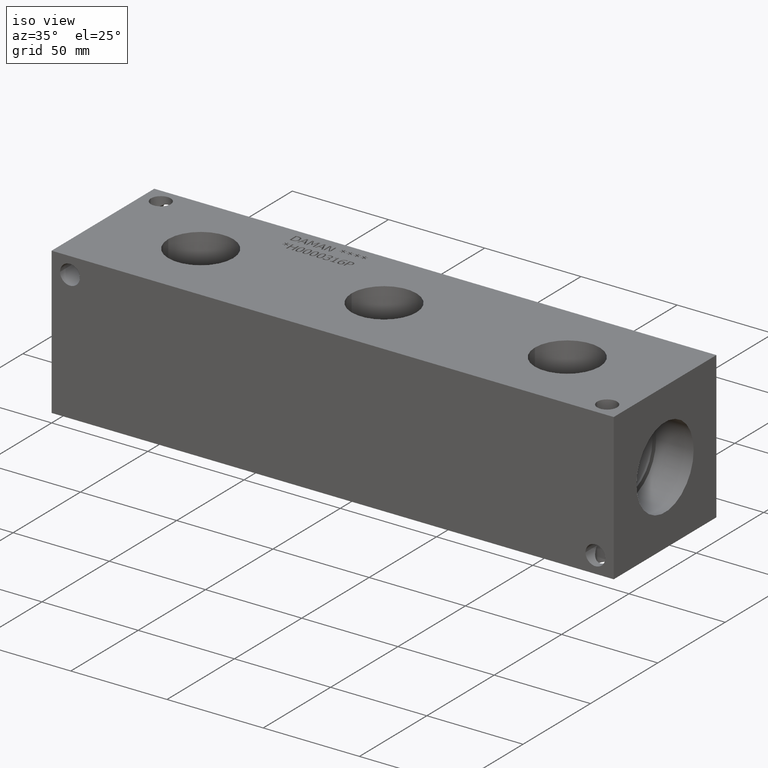
[diagram: clean part render]
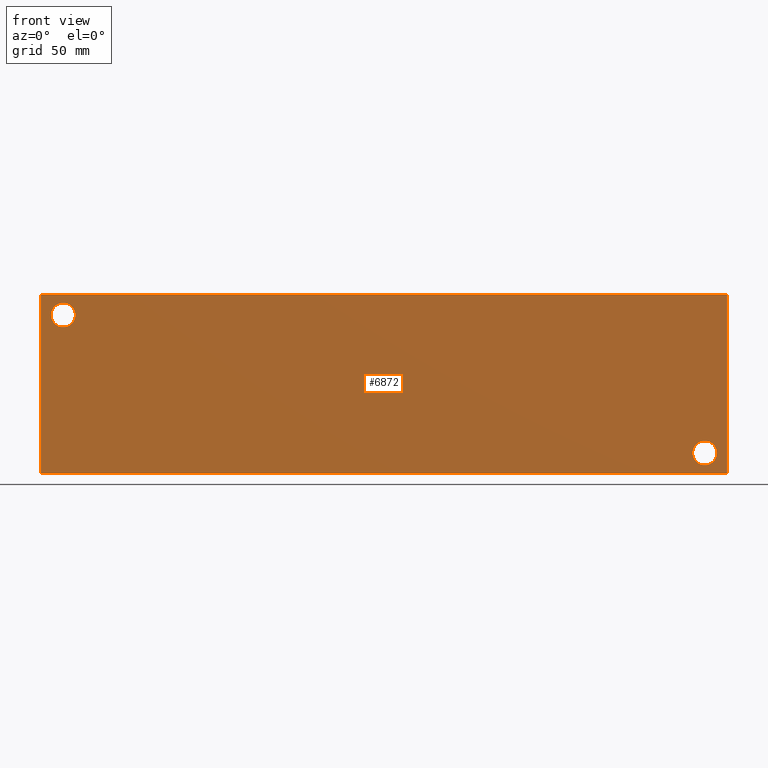
[diagram: tour spotlight — one face highlighted and labeled with its STEP entity id]
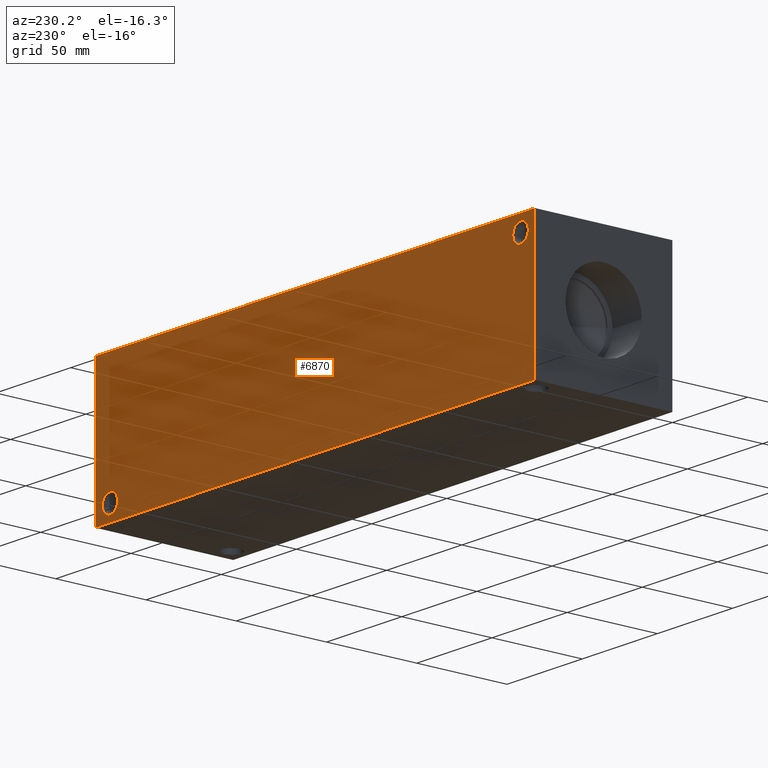
[diagram: tour spotlight — one face highlighted and labeled with its STEP entity id]
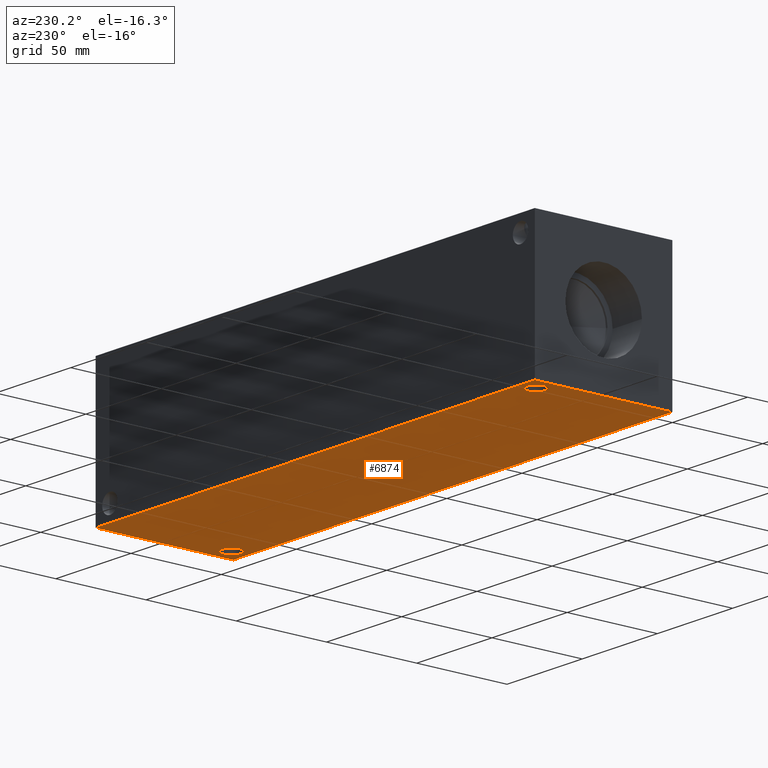
[diagram: tour spotlight — one face highlighted and labeled with its STEP entity id]
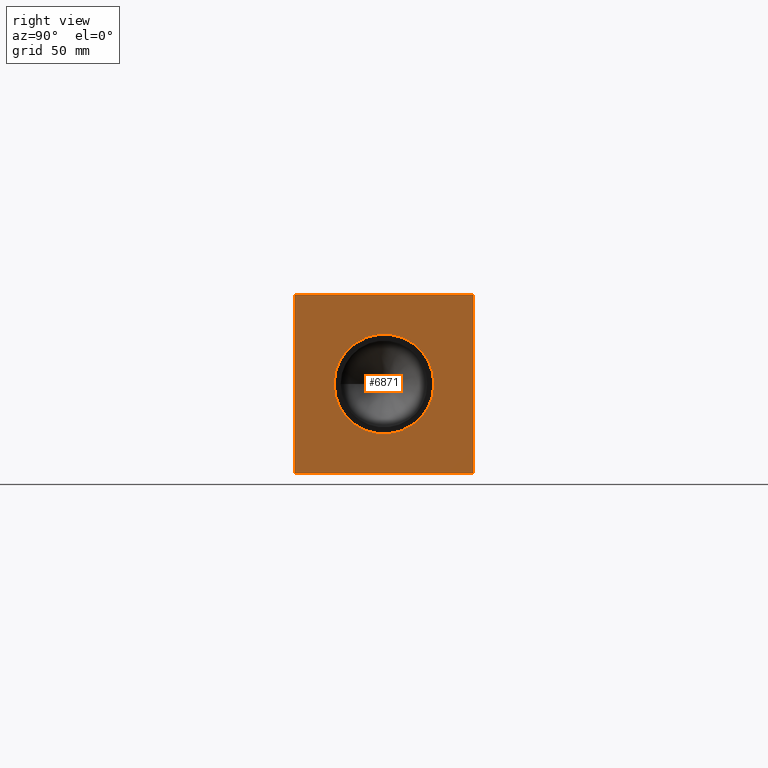
[diagram: tour spotlight — one face highlighted and labeled with its STEP entity id]
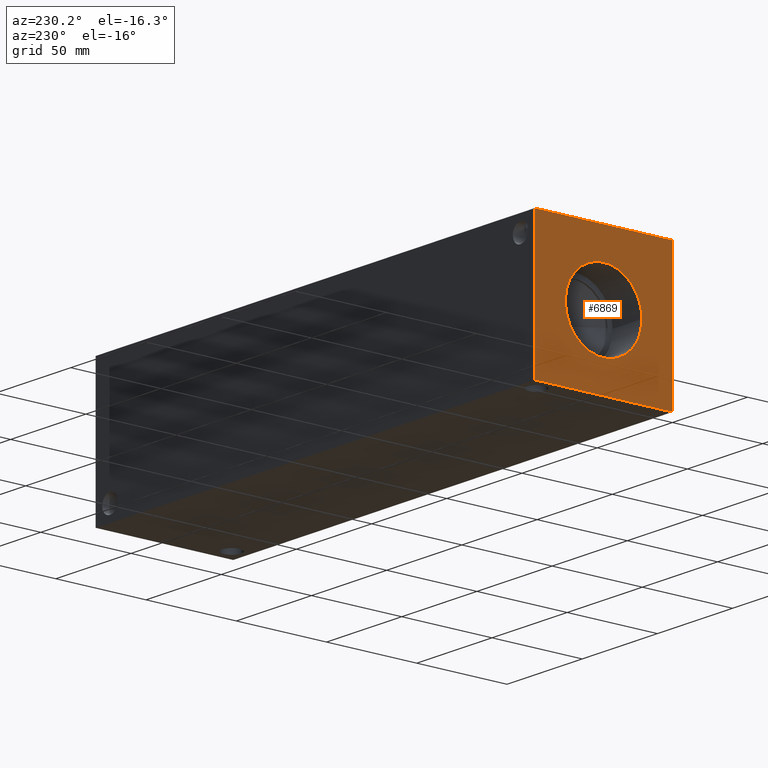
[diagram: tour spotlight — one face highlighted and labeled with its STEP entity id]
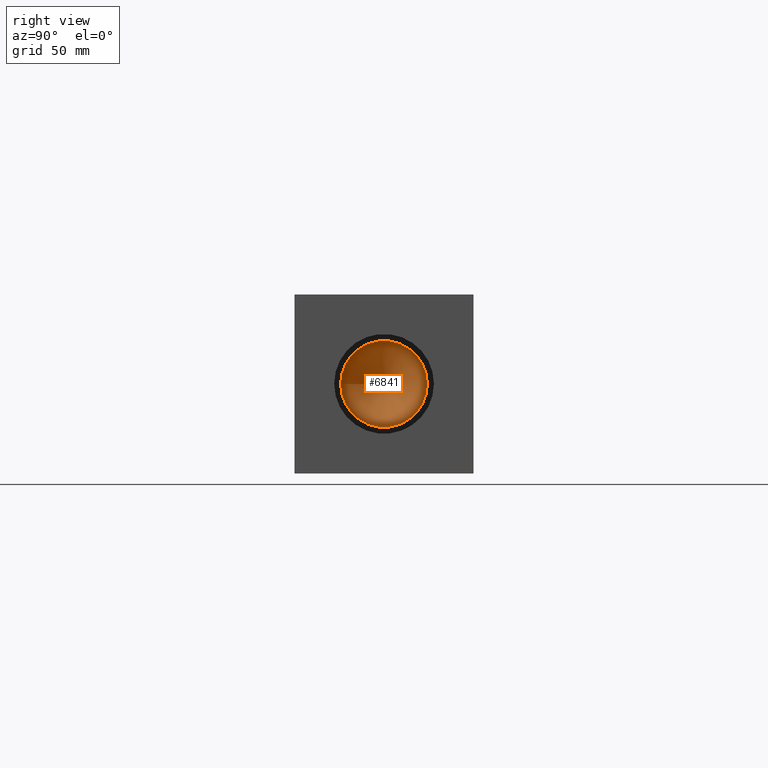
[diagram: tour spotlight — one face highlighted and labeled with its STEP entity id]
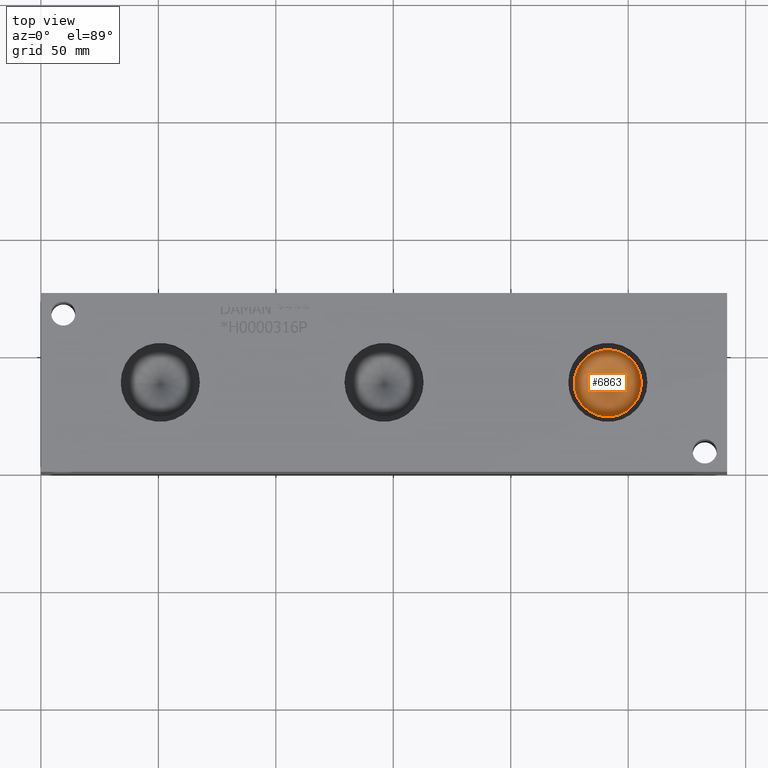
[diagram: tour spotlight — one face highlighted and labeled with its STEP entity id]
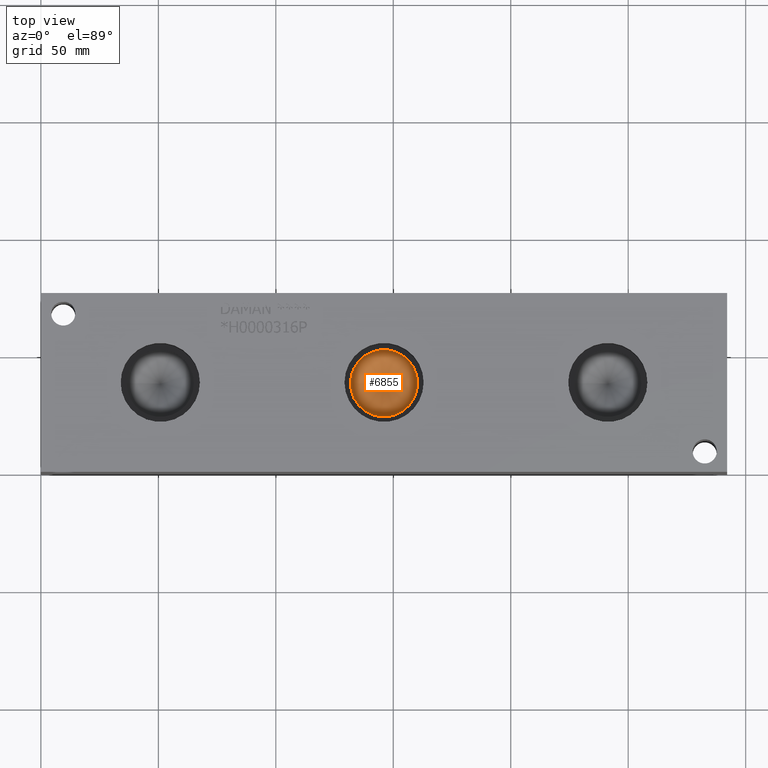
[diagram: tour spotlight — one face highlighted and labeled with its STEP entity id]
A machine part: a face-by-face anatomy tour. The part has 346 B-rep faces; the first image is the clean iso view, then the 8 largest visible faces are spotlighted one at a time (largest first), each with its STEP entity span.

Face 1 — front view, entity #6872. In plain terms, the highlighted planar face has unit normal (0, -1, 0).
Definition (entity closure, byte-faithful):
#69=CIRCLE('',#7131,5.1562);
#70=CIRCLE('',#7132,5.1562);
#72=CIRCLE('',#7141,5.1562);
#73=CIRCLE('',#7142,5.1562);
#443=FACE_BOUND('',#1179,.T.);
#444=FACE_BOUND('',#1180,.T.);
#790=FACE_OUTER_BOUND('',#1178,.T.);
#1178=EDGE_LOOP('',(#5984,#5985,#5986,#5987));
#1179=EDGE_LOOP('',(#5988,#5989));
#1180=EDGE_LOOP('',(#5990,#5991));
#1562=LINE('',#9369,#2243);
#1859=LINE('',#11712,#2540);
#1864=LINE('',#11721,#2545);
#1865=LINE('',#11723,#2546);
#2243=VECTOR('',#7832,10.);
#2540=VECTOR('',#8449,10.);
#2545=VECTOR('',#8458,10.);
#2546=VECTOR('',#8461,10.);
#2809=VERTEX_POINT('',#9367);
#2810=VERTEX_POINT('',#9368);
#3145=VERTEX_POINT('',#11611);
#3146=VERTEX_POINT('',#11612);
#3150=VERTEX_POINT('',#11629);
#3151=VERTEX_POINT('',#11630);
#3176=VERTEX_POINT('',#11710);
#3178=VERTEX_POINT('',#11719);
#3572=EDGE_CURVE('',#2809,#2810,#1562,.T.);
#4065=EDGE_CURVE('',#3145,#3146,#69,.T.);
#4066=EDGE_CURVE('',#3146,#3145,#70,.T.);
#4075=EDGE_CURVE('',#3150,#3151,#72,.T.);
#4076=EDGE_CURVE('',#3151,#3150,#73,.T.);
#4114=EDGE_CURVE('',#3176,#2809,#1859,.T.);
#4119=EDGE_CURVE('',#3178,#2810,#1864,.T.);
#4120=EDGE_CURVE('',#3176,#3178,#1865,.T.);
#5984=ORIENTED_EDGE('',*,*,#4120,.T.);
#5985=ORIENTED_EDGE('',*,*,#4119,.T.);
#5986=ORIENTED_EDGE('',*,*,#3572,.F.);
#5987=ORIENTED_EDGE('',*,*,#4114,.F.);
#5988=ORIENTED_EDGE('',*,*,#4065,.T.);
#5989=ORIENTED_EDGE('',*,*,#4066,.T.);
#5990=ORIENTED_EDGE('',*,*,#4075,.T.);
#5991=ORIENTED_EDGE('',*,*,#4076,.T.);
#6222=PLANE('',#7184);
#6872=ADVANCED_FACE('',(#790,#443,#444),#6222,.T.);
#7131=AXIS2_PLACEMENT_3D('',#11613,#8329,#8330);
#7132=AXIS2_PLACEMENT_3D('',#11614,#8331,#8332);
#7141=AXIS2_PLACEMENT_3D('',#11631,#8352,#8353);
#7142=AXIS2_PLACEMENT_3D('',#11632,#8354,#8355);
#7184=AXIS2_PLACEMENT_3D('',#11722,#8459,#8460);
#7832=DIRECTION('',(1.,0.,0.));
#8329=DIRECTION('center_axis',(0.,1.,0.));
#8330=DIRECTION('ref_axis',(1.,0.,0.));
#8331=DIRECTION('center_axis',(0.,1.,0.));
#8332=DIRECTION('ref_axis',(1.,0.,0.));
#8352=DIRECTION('center_axis',(0.,1.,0.));
#8353=DIRECTION('ref_axis',(1.,0.,0.));
#8354=DIRECTION('center_axis',(0.,1.,0.));
#8355=DIRECTION('ref_axis',(1.,0.,0.));
#8449=DIRECTION('',(0.,0.,1.));
#8458=DIRECTION('',(0.,0.,1.));
#8459=DIRECTION('center_axis',(0.,-1.,0.));
#8460=DIRECTION('ref_axis',(1.,0.,0.));
#8461=DIRECTION('',(1.,0.,0.));
#9367=CARTESIAN_POINT('',(0.,0.,76.2));
#9368=CARTESIAN_POINT('',(292.1,0.,76.2));
#9369=CARTESIAN_POINT('',(0.,0.,76.2));
#11611=CARTESIAN_POINT('',(287.7312,0.,8.7376));
#11612=CARTESIAN_POINT('',(277.4188,0.,8.7376));
#11613=CARTESIAN_POINT('Origin',(282.575,0.,8.7376));
#11614=CARTESIAN_POINT('Origin',(282.575,0.,8.7376));
#11629=CARTESIAN_POINT('',(14.6812,0.,67.4624));
#11630=CARTESIAN_POINT('',(4.3688,0.,67.4624));
#11631=CARTESIAN_POINT('Origin',(9.525,0.,67.4624));
#11632=CARTESIAN_POINT('Origin',(9.525,0.,67.4624));
#11710=CARTESIAN_POINT('',(0.,0.,0.));
#11712=CARTESIAN_POINT('',(0.,0.,0.));
#11719=CARTESIAN_POINT('',(292.1,0.,0.));
#11721=CARTESIAN_POINT('',(292.1,0.,0.));
#11722=CARTESIAN_POINT('Origin',(0.,0.,0.));
#11723=CARTESIAN_POINT('',(0.,0.,0.));

Face 2 — auxiliary view, entity #6870. In plain terms, the highlighted planar face has unit normal (0, 1, 0).
Definition (entity closure, byte-faithful):
#71=CIRCLE('',#7138,5.1562);
#74=CIRCLE('',#7148,5.1562);
#440=FACE_BOUND('',#1174,.T.);
#441=FACE_BOUND('',#1175,.T.);
#788=FACE_OUTER_BOUND('',#1173,.T.);
#1173=EDGE_LOOP('',(#5972,#5973,#5974,#5975));
#1174=EDGE_LOOP('',(#5976));
#1175=EDGE_LOOP('',(#5977));
#1564=LINE('',#9373,#2245);
#1860=LINE('',#11713,#2541);
#1861=LINE('',#11716,#2542);
#1862=LINE('',#11717,#2543);
#2245=VECTOR('',#7834,10.);
#2541=VECTOR('',#8450,10.);
#2542=VECTOR('',#8453,10.);
#2543=VECTOR('',#8454,10.);
#2811=VERTEX_POINT('',#9370);
#2812=VERTEX_POINT('',#9372);
#3149=VERTEX_POINT('',#11623);
#3154=VERTEX_POINT('',#11641);
#3175=VERTEX_POINT('',#11709);
#3177=VERTEX_POINT('',#11715);
#3574=EDGE_CURVE('',#2811,#2812,#1564,.T.);
#4073=EDGE_CURVE('',#3149,#3149,#71,.T.);
#4083=EDGE_CURVE('',#3154,#3154,#74,.T.);
#4115=EDGE_CURVE('',#3175,#2812,#1860,.T.);
#4116=EDGE_CURVE('',#3177,#3175,#1861,.T.);
#4117=EDGE_CURVE('',#3177,#2811,#1862,.T.);
#5972=ORIENTED_EDGE('',*,*,#4116,.T.);
#5973=ORIENTED_EDGE('',*,*,#4115,.T.);
#5974=ORIENTED_EDGE('',*,*,#3574,.F.);
#5975=ORIENTED_EDGE('',*,*,#4117,.F.);
#5976=ORIENTED_EDGE('',*,*,#4073,.T.);
#5977=ORIENTED_EDGE('',*,*,#4083,.T.);
#6220=PLANE('',#7182);
#6870=ADVANCED_FACE('',(#788,#440,#441),#6220,.T.);
#7138=AXIS2_PLACEMENT_3D('',#11625,#8345,#8346);
#7148=AXIS2_PLACEMENT_3D('',#11643,#8368,#8369);
#7182=AXIS2_PLACEMENT_3D('',#11714,#8451,#8452);
#7834=DIRECTION('',(-1.,0.,0.));
#8345=DIRECTION('center_axis',(0.,-1.,0.));
#8346=DIRECTION('ref_axis',(1.,0.,0.));
#8368=DIRECTION('center_axis',(0.,-1.,0.));
#8369=DIRECTION('ref_axis',(1.,0.,0.));
#8450=DIRECTION('',(0.,0.,1.));
#8451=DIRECTION('center_axis',(0.,1.,0.));
#8452=DIRECTION('ref_axis',(-1.,0.,0.));
#8453=DIRECTION('',(-1.,0.,0.));
#8454=DIRECTION('',(0.,0.,1.));
#9370=CARTESIAN_POINT('',(292.1,76.2,76.2));
#9372=CARTESIAN_POINT('',(0.,76.2,76.2));
#9373=CARTESIAN_POINT('',(292.1,76.2,76.2));
#11623=CARTESIAN_POINT('',(277.4188,76.2,8.7376));
#11625=CARTESIAN_POINT('Origin',(282.575,76.2,8.7376));
#11641=CARTESIAN_POINT('',(4.3688,76.2,67.4624));
#11643=CARTESIAN_POINT('Origin',(9.525,76.2,67.4624));
#11709=CARTESIAN_POINT('',(0.,76.2,0.));
#11713=CARTESIAN_POINT('',(0.,76.2,0.));
#11714=CARTESIAN_POINT('Origin',(292.1,76.2,0.));
#11715=CARTESIAN_POINT('',(292.1,76.2,0.));
#11716=CARTESIAN_POINT('',(292.1,76.2,0.));
#11717=CARTESIAN_POINT('',(292.1,76.2,0.));

Face 3 — auxiliary view, entity #6874. In plain terms, the highlighted planar face has unit normal (0, 0, 1).
Definition (entity closure, byte-faithful):
#90=CIRCLE('',#7178,5.1562);
#91=CIRCLE('',#7180,5.1562);
#445=FACE_BOUND('',#1183,.T.);
#446=FACE_BOUND('',#1184,.T.);
#792=FACE_OUTER_BOUND('',#1182,.T.);
#1182=EDGE_LOOP('',(#5999,#6000,#6001,#6002));
#1183=EDGE_LOOP('',(#6003));
#1184=EDGE_LOOP('',(#6004));
#1858=LINE('',#11711,#2539);
#1861=LINE('',#11716,#2542);
#1863=LINE('',#11720,#2544);
#1865=LINE('',#11723,#2546);
#2539=VECTOR('',#8448,10.);
#2542=VECTOR('',#8453,10.);
#2544=VECTOR('',#8457,10.);
#2546=VECTOR('',#8461,10.);
#3173=VERTEX_POINT('',#11701);
#3174=VERTEX_POINT('',#11705);
#3175=VERTEX_POINT('',#11709);
#3176=VERTEX_POINT('',#11710);
#3177=VERTEX_POINT('',#11715);
#3178=VERTEX_POINT('',#11719);
#4110=EDGE_CURVE('',#3173,#3173,#90,.T.);
#4112=EDGE_CURVE('',#3174,#3174,#91,.T.);
#4113=EDGE_CURVE('',#3175,#3176,#1858,.T.);
#4116=EDGE_CURVE('',#3177,#3175,#1861,.T.);
#4118=EDGE_CURVE('',#3178,#3177,#1863,.T.);
#4120=EDGE_CURVE('',#3176,#3178,#1865,.T.);
#5999=ORIENTED_EDGE('',*,*,#4120,.F.);
#6000=ORIENTED_EDGE('',*,*,#4113,.F.);
#6001=ORIENTED_EDGE('',*,*,#4116,.F.);
#6002=ORIENTED_EDGE('',*,*,#4118,.F.);
#6003=ORIENTED_EDGE('',*,*,#4110,.T.);
#6004=ORIENTED_EDGE('',*,*,#4112,.T.);
#6224=PLANE('',#7186);
#6874=ADVANCED_FACE('',(#792,#445,#446),#6224,.F.);
#7178=AXIS2_PLACEMENT_3D('',#11703,#8439,#8440);
#7180=AXIS2_PLACEMENT_3D('',#11707,#8444,#8445);
#7186=AXIS2_PLACEMENT_3D('',#11725,#8464,#8465);
#8439=DIRECTION('center_axis',(0.,0.,1.));
#8440=DIRECTION('ref_axis',(1.,0.,0.));
#8444=DIRECTION('center_axis',(0.,0.,1.));
#8445=DIRECTION('ref_axis',(1.,0.,0.));
#8448=DIRECTION('',(0.,-1.,0.));
#8453=DIRECTION('',(-1.,0.,0.));
#8457=DIRECTION('',(0.,1.,0.));
#8461=DIRECTION('',(1.,0.,0.));
#8464=DIRECTION('center_axis',(0.,0.,1.));
#8465=DIRECTION('ref_axis',(1.,0.,0.));
#11701=CARTESIAN_POINT('',(4.3688,67.4624,0.));
#11703=CARTESIAN_POINT('Origin',(9.525,67.4624,0.));
#11705=CARTESIAN_POINT('',(277.4188,8.7376,0.));
#11707=CARTESIAN_POINT('Origin',(282.575,8.7376,0.));
#11709=CARTESIAN_POINT('',(0.,76.2,0.));
#11710=CARTESIAN_POINT('',(0.,0.,0.));
#11711=CARTESIAN_POINT('',(0.,76.2,0.));
#11715=CARTESIAN_POINT('',(292.1,76.2,0.));
#11716=CARTESIAN_POINT('',(292.1,76.2,0.));
#11719=CARTESIAN_POINT('',(292.1,0.,0.));
#11720=CARTESIAN_POINT('',(292.1,0.,0.));
#11723=CARTESIAN_POINT('',(0.,0.,0.));
#11725=CARTESIAN_POINT('Origin',(146.05,38.1,0.));

Face 4 — right view, entity #6871. In plain terms, the highlighted planar face has unit normal (1, 0, 0).
Definition (entity closure, byte-faithful):
#60=CIRCLE('',#7116,21.2344);
#61=CIRCLE('',#7117,21.2344);
#442=FACE_BOUND('',#1177,.T.);
#789=FACE_OUTER_BOUND('',#1176,.T.);
#1176=EDGE_LOOP('',(#5978,#5979,#5980,#5981));
#1177=EDGE_LOOP('',(#5982,#5983));
#1563=LINE('',#9371,#2244);
#1862=LINE('',#11717,#2543);
#1863=LINE('',#11720,#2544);
#1864=LINE('',#11721,#2545);
#2244=VECTOR('',#7833,10.);
#2543=VECTOR('',#8454,10.);
#2544=VECTOR('',#8457,10.);
#2545=VECTOR('',#8458,10.);
#2810=VERTEX_POINT('',#9368);
#2811=VERTEX_POINT('',#9370);
#3135=VERTEX_POINT('',#11581);
#3136=VERTEX_POINT('',#11582);
#3177=VERTEX_POINT('',#11715);
#3178=VERTEX_POINT('',#11719);
#3573=EDGE_CURVE('',#2810,#2811,#1563,.T.);
#4051=EDGE_CURVE('',#3135,#3136,#60,.T.);
#4052=EDGE_CURVE('',#3136,#3135,#61,.T.);
#4117=EDGE_CURVE('',#3177,#2811,#1862,.T.);
#4118=EDGE_CURVE('',#3178,#3177,#1863,.T.);
#4119=EDGE_CURVE('',#3178,#2810,#1864,.T.);
#5978=ORIENTED_EDGE('',*,*,#4118,.T.);
#5979=ORIENTED_EDGE('',*,*,#4117,.T.);
#5980=ORIENTED_EDGE('',*,*,#3573,.F.);
#5981=ORIENTED_EDGE('',*,*,#4119,.F.);
#5982=ORIENTED_EDGE('',*,*,#4051,.T.);
#5983=ORIENTED_EDGE('',*,*,#4052,.T.);
#6221=PLANE('',#7183);
#6871=ADVANCED_FACE('',(#789,#442),#6221,.T.);
#7116=AXIS2_PLACEMENT_3D('',#11583,#8294,#8295);
#7117=AXIS2_PLACEMENT_3D('',#11584,#8296,#8297);
#7183=AXIS2_PLACEMENT_3D('',#11718,#8455,#8456);
#7833=DIRECTION('',(0.,1.,0.));
#8294=DIRECTION('center_axis',(-1.,0.,0.));
#8295=DIRECTION('ref_axis',(0.,1.,0.));
#8296=DIRECTION('center_axis',(-1.,0.,0.));
#8297=DIRECTION('ref_axis',(0.,1.,0.));
#8454=DIRECTION('',(0.,0.,1.));
#8455=DIRECTION('center_axis',(1.,0.,0.));
#8456=DIRECTION('ref_axis',(0.,1.,0.));
#8457=DIRECTION('',(0.,1.,0.));
#8458=DIRECTION('',(0.,0.,1.));
#9368=CARTESIAN_POINT('',(292.1,0.,76.2));
#9370=CARTESIAN_POINT('',(292.1,76.2,76.2));
#9371=CARTESIAN_POINT('',(292.1,0.,76.2));
#11581=CARTESIAN_POINT('',(292.1,59.3344,38.1));
#11582=CARTESIAN_POINT('',(292.1,16.8656,38.1));
#11583=CARTESIAN_POINT('Origin',(292.1,38.1,38.1));
#11584=CARTESIAN_POINT('Origin',(292.1,38.1,38.1));
#11715=CARTESIAN_POINT('',(292.1,76.2,0.));
#11717=CARTESIAN_POINT('',(292.1,76.2,0.));
#11718=CARTESIAN_POINT('Origin',(292.1,0.,0.));
#11719=CARTESIAN_POINT('',(292.1,0.,0.));
#11720=CARTESIAN_POINT('',(292.1,0.,0.));
#11721=CARTESIAN_POINT('',(292.1,0.,0.));

Face 5 — auxiliary view, entity #6869. In plain terms, the highlighted planar face has unit normal (-1, 0, 0).
Definition (entity closure, byte-faithful):
#67=CIRCLE('',#7127,21.2344);
#68=CIRCLE('',#7128,21.2344);
#439=FACE_BOUND('',#1172,.T.);
#787=FACE_OUTER_BOUND('',#1171,.T.);
#1171=EDGE_LOOP('',(#5966,#5967,#5968,#5969));
#1172=EDGE_LOOP('',(#5970,#5971));
#1565=LINE('',#9374,#2246);
#1858=LINE('',#11711,#2539);
#1859=LINE('',#11712,#2540);
#1860=LINE('',#11713,#2541);
#2246=VECTOR('',#7835,10.);
#2539=VECTOR('',#8448,10.);
#2540=VECTOR('',#8449,10.);
#2541=VECTOR('',#8450,10.);
#2809=VERTEX_POINT('',#9367);
#2812=VERTEX_POINT('',#9372);
#3143=VERTEX_POINT('',#11603);
#3144=VERTEX_POINT('',#11604);
#3175=VERTEX_POINT('',#11709);
#3176=VERTEX_POINT('',#11710);
#3575=EDGE_CURVE('',#2812,#2809,#1565,.T.);
#4061=EDGE_CURVE('',#3143,#3144,#67,.T.);
#4062=EDGE_CURVE('',#3144,#3143,#68,.T.);
#4113=EDGE_CURVE('',#3175,#3176,#1858,.T.);
#4114=EDGE_CURVE('',#3176,#2809,#1859,.T.);
#4115=EDGE_CURVE('',#3175,#2812,#1860,.T.);
#5966=ORIENTED_EDGE('',*,*,#4113,.T.);
#5967=ORIENTED_EDGE('',*,*,#4114,.T.);
#5968=ORIENTED_EDGE('',*,*,#3575,.F.);
#5969=ORIENTED_EDGE('',*,*,#4115,.F.);
#5970=ORIENTED_EDGE('',*,*,#4061,.T.);
#5971=ORIENTED_EDGE('',*,*,#4062,.T.);
#6219=PLANE('',#7181);
#6869=ADVANCED_FACE('',(#787,#439),#6219,.T.);
#7127=AXIS2_PLACEMENT_3D('',#11605,#8319,#8320);
#7128=AXIS2_PLACEMENT_3D('',#11606,#8321,#8322);
#7181=AXIS2_PLACEMENT_3D('',#11708,#8446,#8447);
#7835=DIRECTION('',(0.,-1.,0.));
#8319=DIRECTION('center_axis',(1.,0.,0.));
#8320=DIRECTION('ref_axis',(0.,1.,0.));
#8321=DIRECTION('center_axis',(1.,0.,0.));
#8322=DIRECTION('ref_axis',(0.,1.,0.));
#8446=DIRECTION('center_axis',(-1.,0.,0.));
#8447=DIRECTION('ref_axis',(0.,-1.,0.));
#8448=DIRECTION('',(0.,-1.,0.));
#8449=DIRECTION('',(0.,0.,1.));
#8450=DIRECTION('',(0.,0.,1.));
#9367=CARTESIAN_POINT('',(0.,0.,76.2));
#9372=CARTESIAN_POINT('',(0.,76.2,76.2));
#9374=CARTESIAN_POINT('',(0.,76.2,76.2));
#11603=CARTESIAN_POINT('',(0.,59.3344,38.1));
#11604=CARTESIAN_POINT('',(0.,16.8656,38.1));
#11605=CARTESIAN_POINT('Origin',(0.,38.1,38.1));
#11606=CARTESIAN_POINT('Origin',(0.,38.1,38.1));
#11708=CARTESIAN_POINT('Origin',(0.,76.2,0.));
#11709=CARTESIAN_POINT('',(0.,76.2,0.));
#11710=CARTESIAN_POINT('',(0.,0.,0.));
#11711=CARTESIAN_POINT('',(0.,76.2,0.));
#11712=CARTESIAN_POINT('',(0.,0.,0.));
#11713=CARTESIAN_POINT('',(0.,76.2,0.));

Face 6 — right view, entity #6841. In plain terms, the highlighted conical surface has half-angle 60 deg.
Definition (entity closure, byte-faithful):
#40=CONICAL_SURFACE('',#7108,9.22655,1.0471975511966);
#55=CIRCLE('',#7109,18.4531);
#56=CIRCLE('',#7110,18.4531);
#759=FACE_OUTER_BOUND('',#1138,.T.);
#1138=EDGE_LOOP('',(#5832,#5833,#5834,#5835));
#1835=LINE('',#11571,#2516);
#2516=VECTOR('',#8281,9.22655);
#3129=VERTEX_POINT('',#11567);
#3130=VERTEX_POINT('',#11568);
#3131=VERTEX_POINT('',#11570);
#4045=EDGE_CURVE('',#3129,#3130,#55,.T.);
#4046=EDGE_CURVE('',#3130,#3131,#1835,.T.);
#4047=EDGE_CURVE('',#3130,#3129,#56,.T.);
#5832=ORIENTED_EDGE('',*,*,#4045,.T.);
#5833=ORIENTED_EDGE('',*,*,#4046,.T.);
#5834=ORIENTED_EDGE('',*,*,#4046,.F.);
#5835=ORIENTED_EDGE('',*,*,#4047,.T.);
#6841=ADVANCED_FACE('',(#759),#40,.F.);
#7108=AXIS2_PLACEMENT_3D('',#11566,#8277,#8278);
#7109=AXIS2_PLACEMENT_3D('',#11569,#8279,#8280);
#7110=AXIS2_PLACEMENT_3D('',#11572,#8282,#8283);
#8277=DIRECTION('center_axis',(1.,0.,0.));
#8278=DIRECTION('ref_axis',(0.,1.,0.));
#8279=DIRECTION('center_axis',(1.,0.,0.));
#8280=DIRECTION('ref_axis',(0.,1.,0.));
#8281=DIRECTION('',(-0.5,0.866025403784439,1.06057523872491E-16));
#8282=DIRECTION('center_axis',(1.,0.,0.));
#8283=DIRECTION('ref_axis',(0.,1.,0.));
#11566=CARTESIAN_POINT('Origin',(266.200458873808,38.1,38.1));
#11567=CARTESIAN_POINT('',(271.52741,56.5531,38.1));
#11568=CARTESIAN_POINT('',(271.52741,19.6469,38.1));
#11569=CARTESIAN_POINT('Origin',(271.52741,38.1,38.1));
#11570=CARTESIAN_POINT('',(260.873507747617,38.1,38.1));
#11571=CARTESIAN_POINT('',(266.200458873808,28.87345,38.1));
#11572=CARTESIAN_POINT('Origin',(271.52741,38.1,38.1));

Face 7 — top view, entity #6863. In plain terms, the highlighted conical surface has half-angle 60 deg.
Definition (entity closure, byte-faithful):
#44=CONICAL_SURFACE('',#7168,7.14375,1.0471975511966);
#85=CIRCLE('',#7169,14.2875);
#86=CIRCLE('',#7170,14.2875);
#781=FACE_OUTER_BOUND('',#1164,.T.);
#1164=EDGE_LOOP('',(#5938,#5939,#5940,#5941));
#1853=LINE('',#11687,#2534);
#2534=VECTOR('',#8419,7.14375);
#3167=VERTEX_POINT('',#11683);
#3168=VERTEX_POINT('',#11684);
#3169=VERTEX_POINT('',#11686);
#4101=EDGE_CURVE('',#3167,#3168,#85,.T.);
#4102=EDGE_CURVE('',#3168,#3169,#1853,.T.);
#4103=EDGE_CURVE('',#3168,#3167,#86,.T.);
#5938=ORIENTED_EDGE('',*,*,#4101,.T.);
#5939=ORIENTED_EDGE('',*,*,#4102,.T.);
#5940=ORIENTED_EDGE('',*,*,#4102,.F.);
#5941=ORIENTED_EDGE('',*,*,#4103,.T.);
#6863=ADVANCED_FACE('',(#781),#44,.F.);
#7168=AXIS2_PLACEMENT_3D('',#11682,#8415,#8416);
#7169=AXIS2_PLACEMENT_3D('',#11685,#8417,#8418);
#7170=AXIS2_PLACEMENT_3D('',#11688,#8420,#8421);
#8415=DIRECTION('center_axis',(0.,0.,1.));
#8416=DIRECTION('ref_axis',(1.,0.,0.));
#8417=DIRECTION('center_axis',(0.,0.,1.));
#8418=DIRECTION('ref_axis',(1.,0.,0.));
#8419=DIRECTION('',(0.866025403784438,1.06057523872491E-16,-0.5));
#8420=DIRECTION('center_axis',(0.,0.,1.));
#8421=DIRECTION('ref_axis',(1.,0.,0.));
#11682=CARTESIAN_POINT('Origin',(241.3,38.1,52.2514640144766));
#11683=CARTESIAN_POINT('',(255.5875,38.1,56.37591));
#11684=CARTESIAN_POINT('',(227.0125,38.1,56.37591));
#11685=CARTESIAN_POINT('Origin',(241.3,38.1,56.37591));
#11686=CARTESIAN_POINT('',(241.3,38.1,48.1270180289532));
#11687=CARTESIAN_POINT('',(234.15625,38.1,52.2514640144766));
#11688=CARTESIAN_POINT('Origin',(241.3,38.1,56.37591));

Face 8 — top view, entity #6855. In plain terms, the highlighted conical surface has half-angle 60 deg.
Definition (entity closure, byte-faithful):
#42=CONICAL_SURFACE('',#7150,7.14375,1.0471975511966);
#75=CIRCLE('',#7151,14.2875);
#76=CIRCLE('',#7152,14.2875);
#773=FACE_OUTER_BOUND('',#1154,.T.);
#1154=EDGE_LOOP('',(#5902,#5903,#5904,#5905));
#1847=LINE('',#11651,#2528);
#2528=VECTOR('',#8377,7.14375);
#3155=VERTEX_POINT('',#11647);
#3156=VERTEX_POINT('',#11648);
#3157=VERTEX_POINT('',#11650);
#4085=EDGE_CURVE('',#3155,#3156,#75,.T.);
#4086=EDGE_CURVE('',#3156,#3157,#1847,.T.);
#4087=EDGE_CURVE('',#3156,#3155,#76,.T.);
#5902=ORIENTED_EDGE('',*,*,#4085,.T.);
#5903=ORIENTED_EDGE('',*,*,#4086,.T.);
#5904=ORIENTED_EDGE('',*,*,#4086,.F.);
#5905=ORIENTED_EDGE('',*,*,#4087,.T.);
#6855=ADVANCED_FACE('',(#773),#42,.F.);
#7150=AXIS2_PLACEMENT_3D('',#11646,#8373,#8374);
#7151=AXIS2_PLACEMENT_3D('',#11649,#8375,#8376);
#7152=AXIS2_PLACEMENT_3D('',#11652,#8378,#8379);
#8373=DIRECTION('center_axis',(0.,0.,1.));
#8374=DIRECTION('ref_axis',(1.,0.,0.));
#8375=DIRECTION('center_axis',(0.,0.,1.));
#8376=DIRECTION('ref_axis',(1.,0.,0.));
#8377=DIRECTION('',(0.866025403784438,1.06057523872491E-16,-0.5));
#8378=DIRECTION('center_axis',(0.,0.,1.));
#8379=DIRECTION('ref_axis',(1.,0.,0.));
#11646=CARTESIAN_POINT('Origin',(146.05,38.1,52.2514640144766));
#11647=CARTESIAN_POINT('',(160.3375,38.1,56.37591));
#11648=CARTESIAN_POINT('',(131.7625,38.1,56.37591));
#11649=CARTESIAN_POINT('Origin',(146.05,38.1,56.37591));
#11650=CARTESIAN_POINT('',(146.05,38.1,48.1270180289532));
#11651=CARTESIAN_POINT('',(138.90625,38.1,52.2514640144766));
#11652=CARTESIAN_POINT('Origin',(146.05,38.1,56.37591));